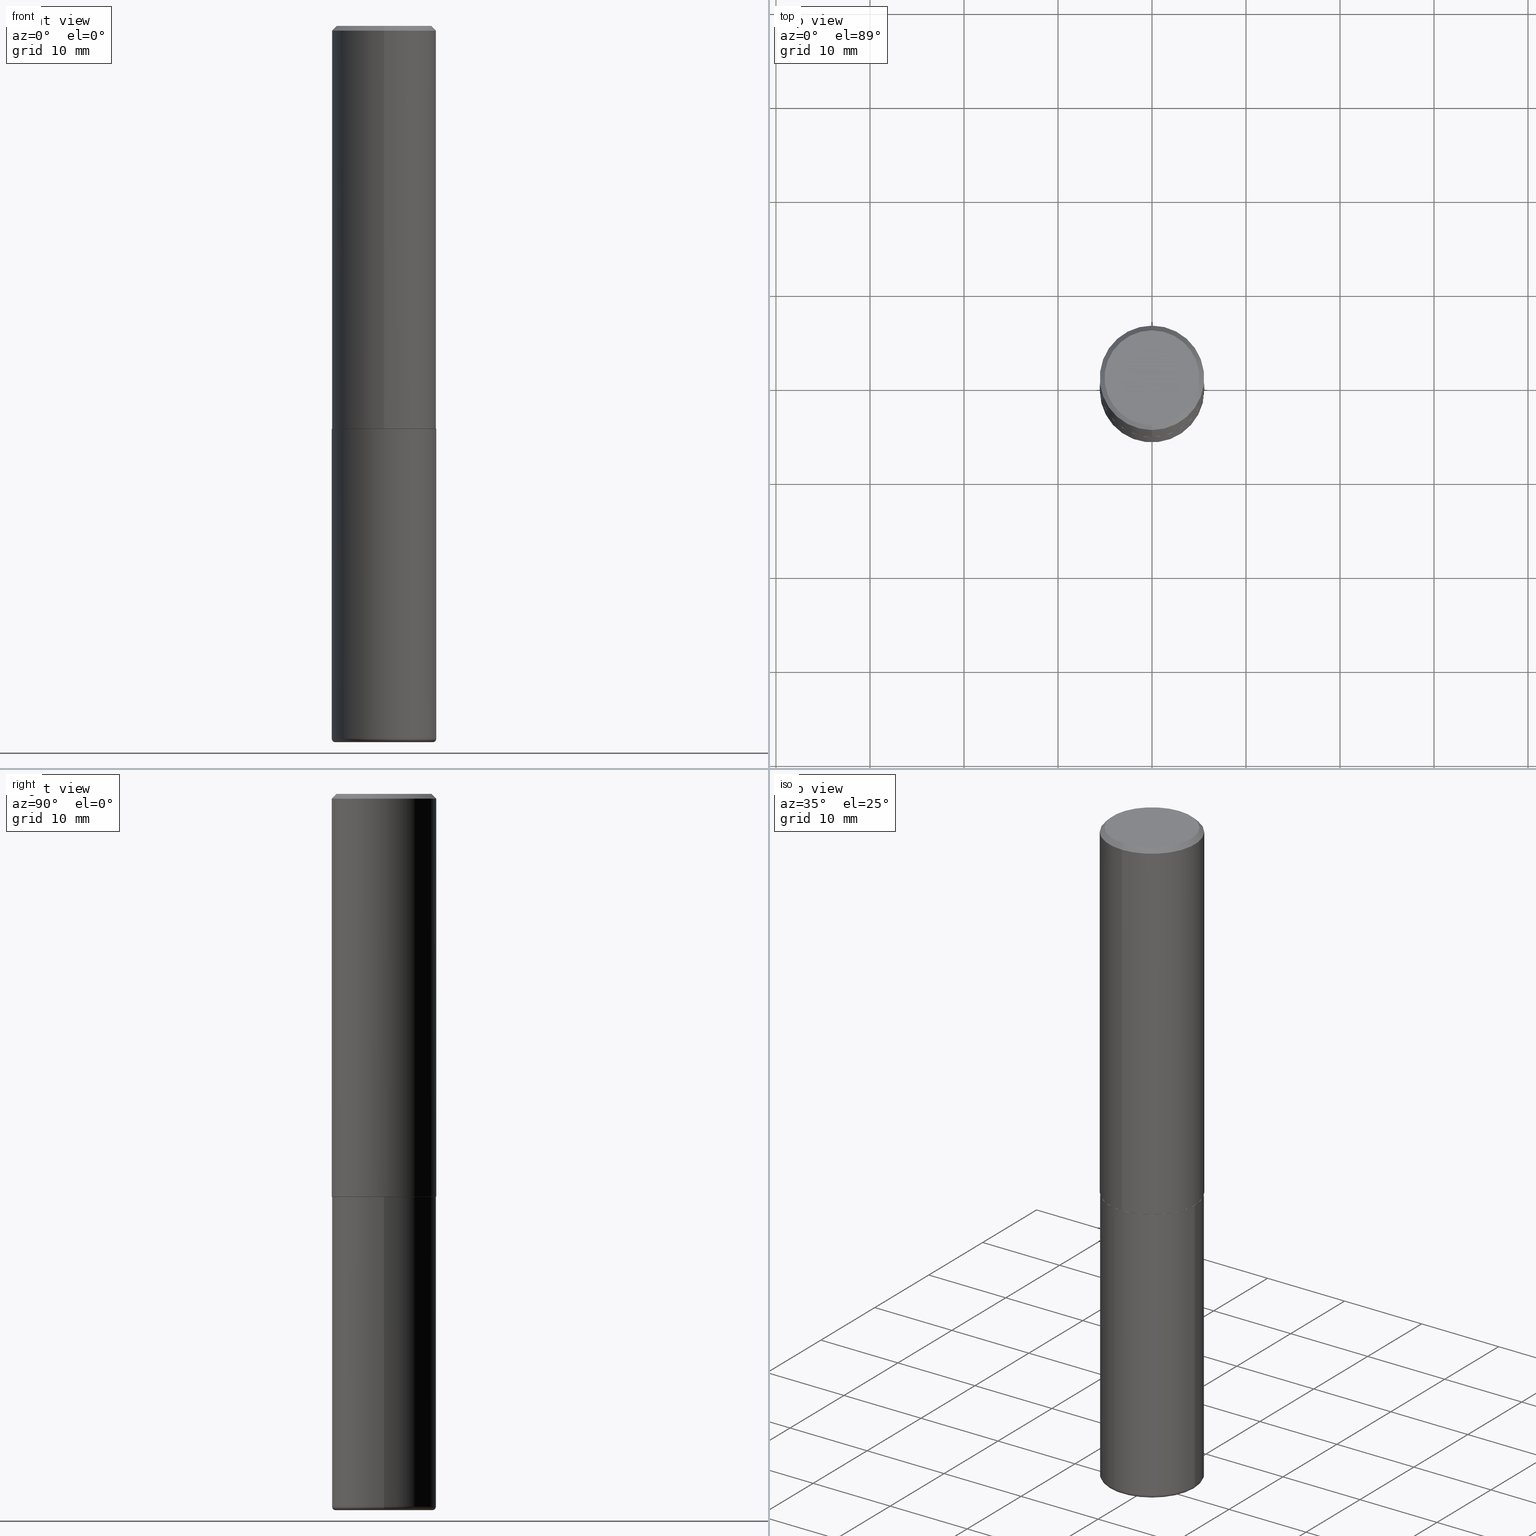
[diagram: canonical four-view strip — front | top / right | iso, engineering-drawing reading convention]
A machine part, canonical four-view strip (front | top / right | iso — engineering-drawing reading convention). The complete STEP part file that produces these views, byte-faithful:
ISO-10303-21;
HEADER;
FILE_DESCRIPTION (( 'STEP AP203' ),
    '1' );
FILE_NAME ('37498.STEP',
    '2024-03-02T02:43:51',
    ( '' ),
    ( '' ),
    'SwSTEP 2.0',
    'SolidWorks 2023',
    '' );
FILE_SCHEMA (( 'CONFIG_CONTROL_DESIGN' ));
ENDSEC;

DATA;
#1 = EDGE_CURVE ( 'NONE', #226, #334, #230, .T. ) ;
#2 = CALENDAR_DATE ( 2024, 1, 3 ) ;
#3 = APPROVAL_PERSON_ORGANIZATION ( #5, #232, #388 ) ;
#4 = SHAPE_DEFINITION_REPRESENTATION ( #55, #310 ) ;
#5 = PERSON_AND_ORGANIZATION ( #116, #291 ) ;
#6 = CC_DESIGN_DATE_AND_TIME_ASSIGNMENT ( #286, #224, ( #11 ) ) ;
#7 = EDGE_LOOP ( 'NONE', ( #299, #97, #415, #391 ) ) ;
#8 = TOROIDAL_SURFACE ( 'NONE', #198, 0.2037499999999999867, 0.01499999999999987454 ) ;
#9 = CIRCLE ( 'NONE', #235, 0.2187499999999999445 ) ;
#10 = VERTEX_POINT ( 'NONE', #69 ) ;
#11 = SECURITY_CLASSIFICATION ( '', '', #321 ) ;
#12 = ORIENTED_EDGE ( 'NONE', *, *, #1, .T. ) ;
#13 = CYLINDRICAL_SURFACE ( 'NONE', #88, 0.2187500000000000833 ) ;
#14 = EDGE_LOOP ( 'NONE', ( #131, #320, #165, #110 ) ) ;
#15 = LINE ( 'NONE', #138, #65 ) ;
#16 = CYLINDRICAL_SURFACE ( 'NONE', #187, 0.2187500000000000278 ) ;
#17 = AXIS2_PLACEMENT_3D ( 'NONE', #180, #211, #57 ) ;
#18 = PERSON_AND_ORGANIZATION_ROLE ( 'creator' ) ;
#19 = AXIS2_PLACEMENT_3D ( 'NONE', #76, #201, #275 ) ;
#20 = DIRECTION ( 'NONE',  ( -2.445468806185136597E-29, 3.491481338843145583E-15, 1.000000000000000000 ) ) ;
#21 = DIRECTION ( 'NONE',  ( 5.024295867788490741E-15, 0.7071067811866103003, 0.7071067811864847341 ) ) ;
#22 = ADVANCED_FACE ( 'NONE', ( #265 ), #8, .T. ) ;
#23 = DIRECTION ( 'NONE',  ( -2.445054220858351343E-29, 3.492075048627833097E-15, 1.000000000000000000 ) ) ;
#24 = EDGE_LOOP ( 'NONE', ( #125, #384, #153, #231 ) ) ;
#25 = DIRECTION ( 'NONE',  ( -6.982962677686265922E-15, -1.000000000000000000, 3.492075048627833097E-15 ) ) ;
#26 = ORIENTED_EDGE ( 'NONE', *, *, #352, .T. ) ;
#27 = AXIS2_PLACEMENT_3D ( 'NONE', #353, #241, #278 ) ;
#28 = CC_DESIGN_SECURITY_CLASSIFICATION ( #11, ( #402 ) ) ;
#29 = PRODUCT_DEFINITION ( 'UNKNOWN', '', #402, #307 ) ;
#30 = FACE_OUTER_BOUND ( 'NONE', #63, .T. ) ;
#31 = ORIENTED_EDGE ( 'NONE', *, *, #375, .F. ) ;
#32 = LINE ( 'NONE', #182, #244 ) ;
#33 = CALENDAR_DATE ( 2024, 1, 3 ) ;
#34 = ORIENTED_EDGE ( 'NONE', *, *, #319, .F. ) ;
#35 = ADVANCED_FACE ( 'NONE', ( #135 ), #311, .T. ) ;
#36 = CARTESIAN_POINT ( 'NONE',  ( 0.2187499999999999445, -1.194959488219066130E-14, -2.984999999999999876 ) ) ;
#37 = DIRECTION ( 'NONE',  ( 0.000000000000000000, 0.000000000000000000, 1.000000000000000000 ) ) ;
#38 = APPROVAL_ROLE ( '' ) ;
#39 = DIRECTION ( 'NONE',  ( -2.445468806185136597E-29, 3.491481338843145583E-15, 1.000000000000000000 ) ) ;
#40 = CONICAL_SURFACE ( 'NONE', #214, 0.2177499999999999991, 0.7853981633975336552 ) ;
#41 = ADVANCED_FACE ( 'NONE', ( #71 ), #394, .T. ) ;
#42 = CC_DESIGN_APPROVAL ( #280, ( #402 ) ) ;
#43 = ORIENTED_EDGE ( 'NONE', *, *, #1, .F. ) ;
#44 = ORIENTED_EDGE ( 'NONE', *, *, #297, .F. ) ;
#45 = DIRECTION ( 'NONE',  ( -6.982962677686266711E-15, -1.000000000000000000, 3.491481338843145583E-15 ) ) ;
#46 = AXIS2_PLACEMENT_3D ( 'NONE', #82, #20, #143 ) ;
#47 = EDGE_LOOP ( 'NONE', ( #355, #151 ) ) ;
#48 = APPROVAL_PERSON_ORGANIZATION ( #253, #274, #38 ) ;
#49 = DIRECTION ( 'NONE',  ( -6.982962677686265922E-15, -1.000000000000000000, 3.492075048627833097E-15 ) ) ;
#50 = DIRECTION ( 'NONE',  ( -2.445468806185136597E-29, 3.491481338843145583E-15, 1.000000000000000000 ) ) ;
#51 = FACE_OUTER_BOUND ( 'NONE', #340, .T. ) ;
#52 = FACE_OUTER_BOUND ( 'NONE', #292, .T. ) ;
#53 = CONICAL_SURFACE ( 'NONE', #266, 0.2177499999999999991, 0.7853981633975336552 ) ;
#54 = CARTESIAN_POINT ( 'NONE',  ( 4.890108441716715262E-31, -6.984150097255683598E-17, -0.02000000000000005246 ) ) ;
#55 = PRODUCT_DEFINITION_SHAPE ( 'NONE', 'NONE',  #29 ) ;
#56 = CARTESIAN_POINT ( 'NONE',  ( 1.527523085743870843E-15, 0.2187499999999998890, -0.02000000000000081574 ) ) ;
#57 = DIRECTION ( 'NONE',  ( 1.000000000000000000, -6.982962677686263555E-15, 0.000000000000000000 ) ) ;
#58 = DIRECTION ( 'NONE',  ( -2.445054220858351343E-29, 3.492075048627833097E-15, 1.000000000000000000 ) ) ;
#59 = CIRCLE ( 'NONE', #347, 0.01499999999999987454 ) ;
#60 = DIRECTION ( 'NONE',  ( 1.000000000000000000, 0.000000000000000000, 0.000000000000000000 ) ) ;
#61 = DIRECTION ( 'NONE',  ( -4.937700262164969294E-15, -0.7071067811866054154, 0.7071067811864896191 ) ) ;
#62 = CALENDAR_DATE ( 2024, 1, 3 ) ;
#63 = EDGE_LOOP ( 'NONE', ( #327, #31, #99, #387 ) ) ;
#64 = ADVANCED_FACE ( 'NONE', ( #168 ), #136, .T. ) ;
#65 = VECTOR ( 'NONE', #172, 39.37007874015748143 ) ;
#66 = PRODUCT ( '37498', '37498', '', ( #414 ) ) ;
#67 = EDGE_LOOP ( 'NONE', ( #195, #317, #26, #354 ) ) ;
#68 = CC_DESIGN_DATE_AND_TIME_ASSIGNMENT ( #127, #259, ( #29 ) ) ;
#69 = CARTESIAN_POINT ( 'NONE',  ( -1.432128957034806803E-15, -0.1987500000000000100, 6.429457658532835252E-16 ) ) ;
#70 = CIRCLE ( 'NONE', #206, 0.2187500000000000000 ) ;
#71 = FACE_OUTER_BOUND ( 'NONE', #103, .T. ) ;
#72 = DIRECTION ( 'NONE',  ( 2.445054220858351343E-29, -3.492075048627833097E-15, -1.000000000000000000 ) ) ;
#73 = DIRECTION ( 'NONE',  ( -2.445054220858351343E-29, 3.492075048627833097E-15, 1.000000000000000000 ) ) ;
#74 = CC_DESIGN_PERSON_AND_ORGANIZATION_ASSIGNMENT ( #184, #155, ( #29 ) ) ;
#75 = CARTESIAN_POINT ( 'NONE',  ( 0.000000000000000000, 0.000000000000000000, 0.000000000000000000 ) ) ;
#76 = CARTESIAN_POINT ( 'NONE',  ( 4.126728610437418568E-29, -5.891874759297808836E-15, -1.687500000000000222 ) ) ;
#77 = DIRECTION ( 'NONE',  ( 1.000000000000000000, -6.982962677686266711E-15, 4.876176775795935232E-29 ) ) ;
#78 = CC_DESIGN_PERSON_AND_ORGANIZATION_ASSIGNMENT ( #189, #94, ( #11 ) ) ;
#79 = DIRECTION ( 'NONE',  ( -2.445468806185136597E-29, 3.491481338843145583E-15, 1.000000000000000000 ) ) ;
#80 = CARTESIAN_POINT ( 'NONE',  ( -1.520540123066143216E-15, -0.2177500000000058833, -1.687499999999999334 ) ) ;
#81 = CIRCLE ( 'NONE', #152, 0.1987500000000000100 ) ;
#82 = CARTESIAN_POINT ( 'NONE',  ( 7.299724386462632472E-29, -1.042207179644678967E-14, -2.984999999999999876 ) ) ;
#83 = FACE_OUTER_BOUND ( 'NONE', #282, .T. ) ;
#84 = ADVANCED_FACE ( 'NONE', ( #101 ), #289, .T. ) ;
#85 = DIRECTION ( 'NONE',  ( 2.438088387897960049E-29, -3.491481338843145188E-15, -1.000000000000000000 ) ) ;
#86 = CARTESIAN_POINT ( 'NONE',  ( 0.2037499999999999867, -1.189722266210801146E-14, -2.999999999999999556 ) ) ;
#87 =( NAMED_UNIT ( * ) SI_UNIT ( $, .STERADIAN. ) SOLID_ANGLE_UNIT ( ) );
#88 = AXIS2_PLACEMENT_3D ( 'NONE', #239, #141, #246 ) ;
#89 = APPLICATION_PROTOCOL_DEFINITION ( 'international standard', 'config_control_design', 1994, #220 ) ;
#90 = ORIENTED_EDGE ( 'NONE', *, *, #297, .T. ) ;
#91 = EDGE_CURVE ( 'NONE', #233, #324, #59, .T. ) ;
#92 = APPROVAL_DATE_TIME ( #323, #274 ) ;
#93 = AXIS2_PLACEMENT_3D ( 'NONE', #249, #39, #225 ) ;
#94 = PERSON_AND_ORGANIZATION_ROLE ( 'classification_officer' ) ;
#95 = EDGE_CURVE ( 'NONE', #334, #150, #229, .T. ) ;
#96 = PERSON_AND_ORGANIZATION ( #116, #291 ) ;
#97 = ORIENTED_EDGE ( 'NONE', *, *, #331, .T. ) ;
#98 = DATE_AND_TIME ( #62, #173 ) ;
#99 = ORIENTED_EDGE ( 'NONE', *, *, #408, .T. ) ;
#100 = PERSON_AND_ORGANIZATION_ROLE ( 'design_owner' ) ;
#101 = FACE_OUTER_BOUND ( 'NONE', #290, .T. ) ;
#102 = ORIENTED_EDGE ( 'NONE', *, *, #356, .T. ) ;
#103 = EDGE_LOOP ( 'NONE', ( #102, #12, #205, #350 ) ) ;
#104 = DIRECTION ( 'NONE',  ( 7.105427357601001859E-15, 1.000000000000000000, -3.491481338843145583E-15 ) ) ;
#105 = AXIS2_PLACEMENT_3D ( 'NONE', #362, #72, #194 ) ;
#106 = VECTOR ( 'NONE', #61, 39.37007874015748143 ) ;
#107 = DIRECTION ( 'NONE',  ( -2.445054220858351343E-29, 3.492075048627833097E-15, 1.000000000000000000 ) ) ;
#108 = CARTESIAN_POINT ( 'NONE',  ( 1.249524178112448832E-45, -1.784595273110905928E-31, -5.110415006149825816E-17 ) ) ;
#109 = DIRECTION ( 'NONE',  ( -2.445468806185136597E-29, 3.491481338843145583E-15, 1.000000000000000000 ) ) ;
#110 = ORIENTED_EDGE ( 'NONE', *, *, #336, .F. ) ;
#111 = FACE_OUTER_BOUND ( 'NONE', #47, .T. ) ;
#112 = DIRECTION ( 'NONE',  ( -2.445054220858351343E-29, 3.492075048627833097E-15, 1.000000000000000000 ) ) ;
#113 = CARTESIAN_POINT ( 'NONE',  ( 0.2187500000000000000, -7.419397845041678890E-15, -1.687500000000000222 ) ) ;
#114 = CARTESIAN_POINT ( 'NONE',  ( 1.547206807117658972E-15, 0.2177499999999940872, -1.687500000000001110 ) ) ;
#115 = AXIS2_PLACEMENT_3D ( 'NONE', #407, #374, #25 ) ;
#116 = PERSON ( 'UNSPECIFIED', 'UNSPECIFIED', 'UNSPECIFIED', ('UNSPECIFIED'), ('UNSPECIFIED'), ('UNSPECIFIED') ) ;
#117 = LOCAL_TIME ( 21, 43, 51.00000000000000000, #196 ) ;
#118 = CARTESIAN_POINT ( 'NONE',  ( -0.2037499999999999867, -8.974340972335584846E-15, -2.984999999999999876 ) ) ;
#119 = PLANE ( 'NONE',  #115 ) ;
#120 = EDGE_CURVE ( 'NONE', #10, #193, #81, .T. ) ;
#121 = AXIS2_PLACEMENT_3D ( 'NONE', #242, #273, #345 ) ;
#122 = MANIFOLD_SOLID_BREP ( 'Body-Move/Copy2[1]', #372 ) ;
#123 = LOCAL_TIME ( 21, 43, 51.00000000000000000, #418 ) ;
#124 = EDGE_CURVE ( 'NONE', #395, #396, #70, .T. ) ;
#125 = ORIENTED_EDGE ( 'NONE', *, *, #413, .T. ) ;
#126 = DIRECTION ( 'NONE',  ( -4.851104656540958753E-15, -0.7071067811865492381, -0.7071067811865457964 ) ) ;
#127 = DATE_AND_TIME ( #2, #174 ) ;
#128 = APPLICATION_CONTEXT ( 'configuration controlled 3d designs of mechanical parts and assemblies' ) ;
#129 = AXIS2_PLACEMENT_3D ( 'NONE', #348, #37, #60 ) ;
#130 = APPROVAL_DATE_TIME ( #98, #232 ) ;
#131 = ORIENTED_EDGE ( 'NONE', *, *, #331, .F. ) ;
#132 = ADVANCED_FACE ( 'NONE', ( #30 ), #381, .T. ) ;
#133 = CIRCLE ( 'NONE', #328, 0.2187500000000000000 ) ;
#134 = CARTESIAN_POINT ( 'NONE',  ( 4.890108441716715262E-31, -6.984150097255683598E-17, -0.02000000000000005246 ) ) ;
#135 = FACE_OUTER_BOUND ( 'NONE', #7, .T. ) ;
#136 = CYLINDRICAL_SURFACE ( 'NONE', #234, 0.2187500000000000278 ) ;
#137 = CC_DESIGN_PERSON_AND_ORGANIZATION_ASSIGNMENT ( #380, #100, ( #66 ) ) ;
#138 = CARTESIAN_POINT ( 'NONE',  ( 0.2187500000000000278, -1.527523085743871040E-15, 1.066663669705361025E-29 ) ) ;
#139 = AXIS2_PLACEMENT_3D ( 'NONE', #134, #277, #410 ) ;
#140 = DIRECTION ( 'NONE',  ( -6.982962677686265922E-15, -1.000000000000000000, 3.763740060157423393E-15 ) ) ;
#141 = DIRECTION ( 'NONE',  ( -2.445054220858351343E-29, 3.492075048627833097E-15, 1.000000000000000000 ) ) ;
#142 = CARTESIAN_POINT ( 'NONE',  ( -0.2037499999999999867, -8.947236377194901810E-15, -2.999999999999999556 ) ) ;
#143 = DIRECTION ( 'NONE',  ( 1.000000000000000000, -6.982962677686271444E-15, 0.000000000000000000 ) ) ;
#144 = LINE ( 'NONE', #250, #106 ) ;
#145 = EDGE_CURVE ( 'NONE', #358, #226, #369, .T. ) ;
#146 = CARTESIAN_POINT ( 'NONE',  ( 4.126728610437418568E-29, -5.891874759297808836E-15, -1.687500000000000222 ) ) ;
#147 = EDGE_LOOP ( 'NONE', ( #154, #364, #90, #183 ) ) ;
#148 = CARTESIAN_POINT ( 'NONE',  ( 7.336406418555408669E-29, -1.047444401652943478E-14, -2.999999999999999556 ) ) ;
#149 = CC_DESIGN_PERSON_AND_ORGANIZATION_ASSIGNMENT ( #171, #18, ( #402 ) ) ;
#150 = VERTEX_POINT ( 'NONE', #175 ) ;
#151 = ORIENTED_EDGE ( 'NONE', *, *, #248, .F. ) ;
#152 = AXIS2_PLACEMENT_3D ( 'NONE', #306, #204, #281 ) ;
#153 = ORIENTED_EDGE ( 'NONE', *, *, #261, .F. ) ;
#154 = ORIENTED_EDGE ( 'NONE', *, *, #145, .F. ) ;
#155 = PERSON_AND_ORGANIZATION_ROLE ( 'creator' ) ;
#156 = AXIS2_PLACEMENT_3D ( 'NONE', #382, #218, #255 ) ;
#157 = DIRECTION ( 'NONE',  ( 1.000000000000000000, -6.982962677686267499E-15, 4.883557194083114022E-29 ) ) ;
#158 = APPROVAL_STATUS ( 'not_yet_approved' ) ;
#159 = CARTESIAN_POINT ( 'NONE',  ( 7.299724386462632472E-29, -1.042207179644678967E-14, -2.984999999999999876 ) ) ;
#160 = ADVANCED_FACE ( 'NONE', ( #52 ), #40, .T. ) ;
#161 = DIMENSIONAL_EXPONENTS ( 1.000000000000000000, 0.000000000000000000, 0.000000000000000000, 0.000000000000000000, 0.000000000000000000, 0.000000000000000000, 0.000000000000000000 ) ;
#162 = DIRECTION ( 'NONE',  ( 1.000000000000000000, -6.982962677686326664E-15, 0.000000000000000000 ) ) ;
#163 = AXIS2_PLACEMENT_3D ( 'NONE', #75, #200, #49 ) ;
#164 = CIRCLE ( 'NONE', #156, 0.2177499999999999991 ) ;
#165 = ORIENTED_EDGE ( 'NONE', *, *, #91, .T. ) ;
#166 = EDGE_CURVE ( 'NONE', #233, #185, #416, .T. ) ;
#167 = CARTESIAN_POINT ( 'NONE',  ( -0.2187499999999999445, -8.867759561971568934E-15, -2.984999999999999876 ) ) ;
#168 = FACE_OUTER_BOUND ( 'NONE', #24, .T. ) ;
#169 = CARTESIAN_POINT ( 'NONE',  ( 1.527523085743870843E-15, 0.2187499999999998890, -0.02000000000000081574 ) ) ;
#170 = CARTESIAN_POINT ( 'NONE',  ( 4.126028997698468907E-29, -5.892876644559468745E-15, -1.687500000000000222 ) ) ;
#171 = PERSON_AND_ORGANIZATION ( #116, #291 ) ;
#172 = DIRECTION ( 'NONE',  ( -2.445468806185136877E-29, 3.491481338843145188E-15, 1.000000000000000000 ) ) ;
#173 = LOCAL_TIME ( 21, 43, 51.00000000000000000, #351 ) ;
#174 = LOCAL_TIME ( 21, 43, 51.00000000000000000, #318 ) ;
#175 = CARTESIAN_POINT ( 'NONE',  ( -1.500733937012521346E-15, -0.2187500000000000278, -0.01999999999999928571 ) ) ;
#176 = CARTESIAN_POINT ( 'NONE',  ( 4.126028997698468907E-29, -5.892876644559468745E-15, -1.687500000000000222 ) ) ;
#177 = ADVANCED_FACE ( 'NONE', ( #412 ), #53, .T. ) ;
#178 = DIRECTION ( 'NONE',  ( 4.937700262164542520E-15, 0.7071067811865443531, -0.7071067811865506814 ) ) ;
#179 = DIRECTION ( 'NONE',  ( 6.982962677686265922E-15, 1.000000000000000000, -3.492862791899308860E-15 ) ) ;
#180 = CARTESIAN_POINT ( 'NONE',  ( 7.336406418555408669E-29, -1.047444401652943478E-14, -2.999999999999999556 ) ) ;
#181 = CC_DESIGN_APPROVAL ( #274, ( #11 ) ) ;
#182 = CARTESIAN_POINT ( 'NONE',  ( -1.500733937012521346E-15, -0.2187500000000000278, -0.01999999999999928571 ) ) ;
#183 = ORIENTED_EDGE ( 'NONE', *, *, #325, .F. ) ;
#184 = PERSON_AND_ORGANIZATION ( #116, #291 ) ;
#185 = VERTEX_POINT ( 'NONE', #142 ) ;
#186 = CLOSED_SHELL ( 'NONE', ( #160, #41, #84, #132, #379, #177, #208, #227 ) ) ;
#187 = AXIS2_PLACEMENT_3D ( 'NONE', #283, #79, #77 ) ;
#188 = ORIENTED_EDGE ( 'NONE', *, *, #319, .T. ) ;
#189 = PERSON_AND_ORGANIZATION ( #116, #291 ) ;
#190 = DIRECTION ( 'NONE',  ( -2.445468806185136597E-29, 3.491481338843145583E-15, 1.000000000000000000 ) ) ;
#191 = VECTOR ( 'NONE', #305, 39.37007874015748143 ) ;
#192 = PRODUCT_RELATED_PRODUCT_CATEGORY ( 'detail', '', ( #66 ) ) ;
#193 = VERTEX_POINT ( 'NONE', #276 ) ;
#194 = DIRECTION ( 'NONE',  ( 6.982962677686265922E-15, 1.000000000000000000, -3.492862791899308860E-15 ) ) ;
#195 = ORIENTED_EDGE ( 'NONE', *, *, #361, .F. ) ;
#196 = COORDINATED_UNIVERSAL_TIME_OFFSET ( 5, 0, .BEHIND. ) ;
#197 = CC_DESIGN_PERSON_AND_ORGANIZATION_ASSIGNMENT ( #405, #219, ( #402 ) ) ;
#198 = AXIS2_PLACEMENT_3D ( 'NONE', #159, #269, #157 ) ;
#199 =( GEOMETRIC_REPRESENTATION_CONTEXT ( 3 ) GLOBAL_UNCERTAINTY_ASSIGNED_CONTEXT ( ( #298 ) ) GLOBAL_UNIT_ASSIGNED_CONTEXT ( ( #262, #390, #87 ) ) REPRESENTATION_CONTEXT ( 'NONE', 'WORKASPACE' ) );
#200 = DIRECTION ( 'NONE',  ( -2.445054220858351343E-29, 3.492075048627833097E-15, 1.000000000000000000 ) ) ;
#201 = DIRECTION ( 'NONE',  ( 2.438088387897960049E-29, -3.491481338843145188E-15, -1.000000000000000000 ) ) ;
#202 = FACE_OUTER_BOUND ( 'NONE', #363, .T. ) ;
#203 = DIRECTION ( 'NONE',  ( -1.000000000000000000, 7.105427357601050768E-15, 0.000000000000000000 ) ) ;
#204 = DIRECTION ( 'NONE',  ( -2.445054220858351343E-29, 3.492075048627833097E-15, 1.000000000000000000 ) ) ;
#205 = ORIENTED_EDGE ( 'NONE', *, *, #288, .F. ) ;
#206 = AXIS2_PLACEMENT_3D ( 'NONE', #339, #210, #302 ) ;
#207 = DIRECTION ( 'NONE',  ( -2.445054220858351343E-29, 3.492075048627833097E-15, 1.000000000000000000 ) ) ;
#208 = ADVANCED_FACE ( 'NONE', ( #83 ), #119, .F. ) ;
#209 = CARTESIAN_POINT ( 'NONE',  ( 4.123583943477609610E-29, -5.889384569510841777E-15, -1.686500000000000110 ) ) ;
#210 = DIRECTION ( 'NONE',  ( -2.445468806185136597E-29, 3.491481338843145583E-15, 1.000000000000000000 ) ) ;
#211 = DIRECTION ( 'NONE',  ( -2.445468806185136597E-29, 3.491481338843145583E-15, 1.000000000000000000 ) ) ;
#212 = ADVANCED_FACE ( 'NONE', ( #367 ), #16, .T. ) ;
#213 = LENGTH_MEASURE_WITH_UNIT ( LENGTH_MEASURE( 0.02539999999999999897 ), #312 );
#214 = AXIS2_PLACEMENT_3D ( 'NONE', #170, #107, #377 ) ;
#215 = CC_DESIGN_APPROVAL ( #232, ( #29 ) ) ;
#216 = ORIENTED_EDGE ( 'NONE', *, *, #268, .T. ) ;
#217 = APPROVAL_STATUS ( 'not_yet_approved' ) ;
#218 = DIRECTION ( 'NONE',  ( -2.445054220858351343E-29, 3.492075048627833097E-15, 1.000000000000000000 ) ) ;
#219 = PERSON_AND_ORGANIZATION_ROLE ( 'design_supplier' ) ;
#220 = APPLICATION_CONTEXT ( 'configuration controlled 3d designs of mechanical parts and assemblies' ) ;
#221 = ORIENTED_EDGE ( 'NONE', *, *, #303, .T. ) ;
#222 = AXIS2_PLACEMENT_3D ( 'NONE', #209, #409, #376 ) ;
#223 = ORIENTED_EDGE ( 'NONE', *, *, #356, .F. ) ;
#224 = DATE_TIME_ROLE ( 'classification_date' ) ;
#225 = DIRECTION ( 'NONE',  ( 1.000000000000000000, -6.982962677686271444E-15, 0.000000000000000000 ) ) ;
#226 = VERTEX_POINT ( 'NONE', #247 ) ;
#227 = ADVANCED_FACE ( 'NONE', ( #202 ), #337, .F. ) ;
#228 = ORIENTED_EDGE ( 'NONE', *, *, #325, .T. ) ;
#229 = CIRCLE ( 'NONE', #139, 0.2187499999999999445 ) ;
#230 = LINE ( 'NONE', #329, #333 ) ;
#231 = ORIENTED_EDGE ( 'NONE', *, *, #352, .F. ) ;
#232 = APPROVAL ( #217, 'UNSPECIFIED' ) ;
#233 = VERTEX_POINT ( 'NONE', #86 ) ;
#234 = AXIS2_PLACEMENT_3D ( 'NONE', #271, #190, #263 ) ;
#235 = AXIS2_PLACEMENT_3D ( 'NONE', #308, #207, #343 ) ;
#236 = LINE ( 'NONE', #406, #191 ) ;
#237 = DIRECTION ( 'NONE',  ( 1.000000000000000000, -6.982962677686263555E-15, 0.000000000000000000 ) ) ;
#238 = APPROVAL_DATE_TIME ( #335, #280 ) ;
#239 = CARTESIAN_POINT ( 'NONE',  ( 0.000000000000000000, 0.000000000000000000, 0.000000000000000000 ) ) ;
#240 = DIRECTION ( 'NONE',  ( 2.445054220858351343E-29, -3.492075048627833097E-15, -1.000000000000000000 ) ) ;
#241 = DIRECTION ( 'NONE',  ( -2.445054220858351343E-29, 3.492075048627833097E-15, 1.000000000000000000 ) ) ;
#242 = CARTESIAN_POINT ( 'NONE',  ( 1.387863832190145233E-15, 0.1987500000000000100, -7.196019909455309833E-16 ) ) ;
#243 = AXIS2_PLACEMENT_3D ( 'NONE', #294, #360, #301 ) ;
#244 = VECTOR ( 'NONE', #126, 39.37007874015748143 ) ;
#245 = CARTESIAN_POINT ( 'NONE',  ( 4.126028997698468907E-29, -5.892876644559468745E-15, -1.687500000000000222 ) ) ;
#246 = DIRECTION ( 'NONE',  ( -6.982962677686265922E-15, -1.000000000000000000, 3.492075048627833097E-15 ) ) ;
#247 = CARTESIAN_POINT ( 'NONE',  ( 1.554312234475240653E-15, 0.2187499999999943101, -1.686500000000000998 ) ) ;
#248 = EDGE_CURVE ( 'NONE', #185, #233, #393, .T. ) ;
#249 = CARTESIAN_POINT ( 'NONE',  ( 7.299724386462632472E-29, -1.042207179644678967E-14, -2.984999999999999876 ) ) ;
#250 = CARTESIAN_POINT ( 'NONE',  ( -1.520540123066143216E-15, -0.2177500000000058833, -1.687499999999999334 ) ) ;
#251 = CIRCLE ( 'NONE', #341, 0.01499999999999987454 ) ;
#252 = CIRCLE ( 'NONE', #93, 0.2187500000000000278 ) ;
#253 = PERSON_AND_ORGANIZATION ( #116, #291 ) ;
#254 = EDGE_CURVE ( 'NONE', #358, #287, #313, .T. ) ;
#255 = DIRECTION ( 'NONE',  ( -6.982962677686265922E-15, -1.000000000000000000, 3.763740060157423393E-15 ) ) ;
#256 = ORIENTED_EDGE ( 'NONE', *, *, #261, .T. ) ;
#257 = ORIENTED_EDGE ( 'NONE', *, *, #95, .F. ) ;
#258 = CIRCLE ( 'NONE', #272, 0.1987500000000000100 ) ;
#259 = DATE_TIME_ROLE ( 'creation_date' ) ;
#260 = VERTEX_POINT ( 'NONE', #346 ) ;
#261 = EDGE_CURVE ( 'NONE', #396, #395, #133, .T. ) ;
#262 =( CONVERSION_BASED_UNIT ( 'INCH', #213 ) LENGTH_UNIT ( ) NAMED_UNIT ( #161 ) );
#263 = DIRECTION ( 'NONE',  ( 1.000000000000000000, -6.982962677686266711E-15, 4.876176775795935232E-29 ) ) ;
#264 = MANIFOLD_SOLID_BREP ( 'Body-Move/Copy2[2]', #186 ) ;
#265 = FACE_OUTER_BOUND ( 'NONE', #14, .T. ) ;
#266 = AXIS2_PLACEMENT_3D ( 'NONE', #245, #112, #140 ) ;
#267 = ORIENTED_EDGE ( 'NONE', *, *, #145, .T. ) ;
#268 = EDGE_CURVE ( 'NONE', #260, #150, #314, .T. ) ;
#269 = DIRECTION ( 'NONE',  ( -2.445468806185136597E-29, 3.491481338843145583E-15, 1.000000000000000000 ) ) ;
#270 = PLANE ( 'NONE',  #19 ) ;
#271 = CARTESIAN_POINT ( 'NONE',  ( 0.000000000000000000, 0.000000000000000000, 0.000000000000000000 ) ) ;
#272 = AXIS2_PLACEMENT_3D ( 'NONE', #108, #368, #338 ) ;
#273 = DIRECTION ( 'NONE',  ( 2.445054220858351343E-29, -3.492075048627833097E-15, -1.000000000000000000 ) ) ;
#274 = APPROVAL ( #326, 'UNSPECIFIED' ) ;
#275 = DIRECTION ( 'NONE',  ( -1.000000000000000000, 6.982962677686265922E-15, -4.876176775795935793E-29 ) ) ;
#276 = CARTESIAN_POINT ( 'NONE',  ( 1.457693458967008136E-15, 0.1987500000000000100, -7.451540659762801031E-16 ) ) ;
#277 = DIRECTION ( 'NONE',  ( -2.445054220858351343E-29, 3.492075048627833097E-15, 1.000000000000000000 ) ) ;
#278 = DIRECTION ( 'NONE',  ( -6.982962677686265922E-15, -1.000000000000000000, 3.746534391310985612E-15 ) ) ;
#279 = AXIS2_PLACEMENT_3D ( 'NONE', #342, #85, #300 ) ;
#280 = APPROVAL ( #158, 'UNSPECIFIED' ) ;
#281 = DIRECTION ( 'NONE',  ( -6.982962677686265133E-15, -1.000000000000000000, 3.492075048627833097E-15 ) ) ;
#282 = EDGE_LOOP ( 'NONE', ( #34, #316 ) ) ;
#283 = CARTESIAN_POINT ( 'NONE',  ( 0.000000000000000000, 0.000000000000000000, 0.000000000000000000 ) ) ;
#284 = APPLICATION_PROTOCOL_DEFINITION ( 'international standard', 'config_control_design', 1994, #128 ) ;
#285 = CIRCLE ( 'NONE', #46, 0.2187500000000000278 ) ;
#286 = DATE_AND_TIME ( #33, #349 ) ;
#287 = VERTEX_POINT ( 'NONE', #80 ) ;
#288 = EDGE_CURVE ( 'NONE', #150, #334, #9, .T. ) ;
#289 = CONICAL_SURFACE ( 'NONE', #105, 0.2187499999999999445, 0.7853981633974472798 ) ;
#290 = EDGE_LOOP ( 'NONE', ( #295, #221, #315, #389 ) ) ;
#291 = ORGANIZATION ( 'UNSPECIFIED', 'UNSPECIFIED', '' ) ;
#292 = EDGE_LOOP ( 'NONE', ( #188, #267, #223, #44 ) ) ;
#293 = APPROVAL_ROLE ( '' ) ;
#294 = CARTESIAN_POINT ( 'NONE',  ( 7.299724386462632472E-29, -1.042207179644678967E-14, -2.984999999999999876 ) ) ;
#295 = ORIENTED_EDGE ( 'NONE', *, *, #120, .F. ) ;
#296 = VECTOR ( 'NONE', #21, 39.37007874015748143 ) ;
#297 = EDGE_CURVE ( 'NONE', #287, #260, #144, .T. ) ;
#298 = UNCERTAINTY_MEASURE_WITH_UNIT (LENGTH_MEASURE( 1.000000000000000082E-05 ), #262, 'distance_accuracy_value', 'NONE');
#299 = ORIENTED_EDGE ( 'NONE', *, *, #166, .T. ) ;
#300 = DIRECTION ( 'NONE',  ( -1.000000000000000000, 6.982962677686265922E-15, -4.876176775795935793E-29 ) ) ;
#301 = DIRECTION ( 'NONE',  ( 1.000000000000000000, -6.982962677686267499E-15, 4.883557194083114022E-29 ) ) ;
#302 = DIRECTION ( 'NONE',  ( 1.000000000000000000, -6.982962677686267499E-15, 0.000000000000000000 ) ) ;
#303 = EDGE_CURVE ( 'NONE', #10, #150, #32, .T. ) ;
#304 = AXIS2_PLACEMENT_3D ( 'NONE', #54, #240, #179 ) ;
#305 = DIRECTION ( 'NONE',  ( -2.445468806185136877E-29, 3.491481338843145188E-15, 1.000000000000000000 ) ) ;
#306 = CARTESIAN_POINT ( 'NONE',  ( 1.249524178112448832E-45, -1.784595273110905928E-31, -5.110415006149825816E-17 ) ) ;
#307 = DESIGN_CONTEXT ( 'detailed design', #220, 'design' ) ;
#308 = CARTESIAN_POINT ( 'NONE',  ( 4.890108441716715262E-31, -6.984150097255683598E-17, -0.02000000000000005246 ) ) ;
#309 = CARTESIAN_POINT ( 'NONE',  ( -1.527523085743871237E-15, -0.2187500000000000833, 7.638914168873387857E-16 ) ) ;
#310 = ADVANCED_BREP_SHAPE_REPRESENTATION ( '37498', ( #122, #264, #129 ), #199 ) ;
#311 = TOROIDAL_SURFACE ( 'NONE', #243, 0.2037499999999999867, 0.01499999999999987454 ) ;
#312 =( LENGTH_UNIT ( ) NAMED_UNIT ( * ) SI_UNIT ( $, .METRE. ) );
#313 = CIRCLE ( 'NONE', #322, 0.2177499999999999991 ) ;
#314 = LINE ( 'NONE', #309, #386 ) ;
#315 = ORIENTED_EDGE ( 'NONE', *, *, #288, .T. ) ;
#316 = ORIENTED_EDGE ( 'NONE', *, *, #254, .F. ) ;
#317 = ORIENTED_EDGE ( 'NONE', *, *, #336, .T. ) ;
#318 = COORDINATED_UNIVERSAL_TIME_OFFSET ( 5, 0, .BEHIND. ) ;
#319 = EDGE_CURVE ( 'NONE', #287, #358, #164, .T. ) ;
#320 = ORIENTED_EDGE ( 'NONE', *, *, #248, .T. ) ;
#321 = SECURITY_CLASSIFICATION_LEVEL ( 'unclassified' ) ;
#322 = AXIS2_PLACEMENT_3D ( 'NONE', #176, #23, #371 ) ;
#323 = DATE_AND_TIME ( #385, #123 ) ;
#324 = VERTEX_POINT ( 'NONE', #36 ) ;
#325 = EDGE_CURVE ( 'NONE', #226, #260, #365, .T. ) ;
#326 = APPROVAL_STATUS ( 'not_yet_approved' ) ;
#327 = ORIENTED_EDGE ( 'NONE', *, *, #303, .F. ) ;
#328 = AXIS2_PLACEMENT_3D ( 'NONE', #146, #50, #404 ) ;
#329 = CARTESIAN_POINT ( 'NONE',  ( 1.554312234475219551E-15, 0.2187500000000000833, -7.638914168873387857E-16 ) ) ;
#330 = CARTESIAN_POINT ( 'NONE',  ( 0.2037499999999999867, -1.184485044202536478E-14, -2.984999999999999876 ) ) ;
#331 = EDGE_CURVE ( 'NONE', #185, #378, #251, .T. ) ;
#332 = ORIENTED_EDGE ( 'NONE', *, *, #120, .T. ) ;
#333 = VECTOR ( 'NONE', #73, 39.37007874015748143 ) ;
#334 = VERTEX_POINT ( 'NONE', #169 ) ;
#335 = DATE_AND_TIME ( #398, #117 ) ;
#336 = EDGE_CURVE ( 'NONE', #378, #324, #285, .T. ) ;
#337 = PLANE ( 'NONE',  #121 ) ;
#338 = DIRECTION ( 'NONE',  ( -6.982962677686265133E-15, -1.000000000000000000, 3.492075048627833097E-15 ) ) ;
#339 = CARTESIAN_POINT ( 'NONE',  ( 4.126728610437418568E-29, -5.891874759297808836E-15, -1.687500000000000222 ) ) ;
#340 = EDGE_LOOP ( 'NONE', ( #256, #400 ) ) ;
#341 = AXIS2_PLACEMENT_3D ( 'NONE', #118, #104, #203 ) ;
#342 = CARTESIAN_POINT ( 'NONE',  ( 1.295399441782991178E-28, -2.429738268315648878E-15, -2.999999999999999556 ) ) ;
#343 = DIRECTION ( 'NONE',  ( -6.982962677686265922E-15, -1.000000000000000000, 3.492862791899308860E-15 ) ) ;
#344 = LINE ( 'NONE', #56, #359 ) ;
#345 = DIRECTION ( 'NONE',  ( 6.982962677686265922E-15, 1.000000000000000000, -3.492075048627833097E-15 ) ) ;
#346 = CARTESIAN_POINT ( 'NONE',  ( -1.527523085743831005E-15, -0.2187500000000061062, -1.686499999999999444 ) ) ;
#347 = AXIS2_PLACEMENT_3D ( 'NONE', #330, #45, #162 ) ;
#348 = CARTESIAN_POINT ( 'NONE',  ( 0.000000000000000000, 0.000000000000000000, 0.000000000000000000 ) ) ;
#349 = LOCAL_TIME ( 21, 43, 51.00000000000000000, #383 ) ;
#350 = ORIENTED_EDGE ( 'NONE', *, *, #268, .F. ) ;
#351 = COORDINATED_UNIVERSAL_TIME_OFFSET ( 5, 0, .BEHIND. ) ;
#352 = EDGE_CURVE ( 'NONE', #324, #396, #15, .T. ) ;
#353 = CARTESIAN_POINT ( 'NONE',  ( 4.123583943477609610E-29, -5.889384569510841777E-15, -1.686500000000000110 ) ) ;
#354 = ORIENTED_EDGE ( 'NONE', *, *, #124, .F. ) ;
#355 = ORIENTED_EDGE ( 'NONE', *, *, #166, .F. ) ;
#356 = EDGE_CURVE ( 'NONE', #260, #226, #401, .T. ) ;
#357 = ORIENTED_EDGE ( 'NONE', *, *, #375, .T. ) ;
#358 = VERTEX_POINT ( 'NONE', #403 ) ;
#359 = VECTOR ( 'NONE', #178, 39.37007874015748143 ) ;
#360 = DIRECTION ( 'NONE',  ( -2.445468806185136597E-29, 3.491481338843145583E-15, 1.000000000000000000 ) ) ;
#361 = EDGE_CURVE ( 'NONE', #378, #395, #236, .T. ) ;
#362 = CARTESIAN_POINT ( 'NONE',  ( 4.890108441716715262E-31, -6.984150097255683598E-17, -0.02000000000000005246 ) ) ;
#363 = EDGE_LOOP ( 'NONE', ( #357, #332 ) ) ;
#364 = ORIENTED_EDGE ( 'NONE', *, *, #254, .T. ) ;
#365 = CIRCLE ( 'NONE', #27, 0.2187500000000002220 ) ;
#366 = FACE_OUTER_BOUND ( 'NONE', #417, .T. ) ;
#367 = FACE_OUTER_BOUND ( 'NONE', #67, .T. ) ;
#368 = DIRECTION ( 'NONE',  ( -2.445054220858351343E-29, 3.492075048627833097E-15, 1.000000000000000000 ) ) ;
#369 = LINE ( 'NONE', #114, #296 ) ;
#370 = PLANE ( 'NONE',  #279 ) ;
#371 = DIRECTION ( 'NONE',  ( -6.982962677686265922E-15, -1.000000000000000000, 3.763740060157423393E-15 ) ) ;
#372 = CLOSED_SHELL ( 'NONE', ( #64, #35, #392, #212, #22, #397 ) ) ;
#373 = AXIS2_PLACEMENT_3D ( 'NONE', #148, #109, #237 ) ;
#374 = DIRECTION ( 'NONE',  ( -2.445054220858351343E-29, 3.492075048627833097E-15, 1.000000000000000000 ) ) ;
#375 = EDGE_CURVE ( 'NONE', #193, #10, #258, .T. ) ;
#376 = DIRECTION ( 'NONE',  ( -6.982962677686265922E-15, -1.000000000000000000, 3.746534391310985612E-15 ) ) ;
#377 = DIRECTION ( 'NONE',  ( -6.982962677686265922E-15, -1.000000000000000000, 3.763740060157423393E-15 ) ) ;
#378 = VERTEX_POINT ( 'NONE', #167 ) ;
#379 = ADVANCED_FACE ( 'NONE', ( #366 ), #13, .T. ) ;
#380 = PERSON_AND_ORGANIZATION ( #116, #291 ) ;
#381 = CONICAL_SURFACE ( 'NONE', #304, 0.2187499999999999445, 0.7853981633974472798 ) ;
#382 = CARTESIAN_POINT ( 'NONE',  ( 4.126028997698468907E-29, -5.892876644559468745E-15, -1.687500000000000222 ) ) ;
#383 = COORDINATED_UNIVERSAL_TIME_OFFSET ( 5, 0, .BEHIND. ) ;
#384 = ORIENTED_EDGE ( 'NONE', *, *, #361, .T. ) ;
#385 = CALENDAR_DATE ( 2024, 1, 3 ) ;
#386 = VECTOR ( 'NONE', #58, 39.37007874015748143 ) ;
#387 = ORIENTED_EDGE ( 'NONE', *, *, #95, .T. ) ;
#388 = APPROVAL_ROLE ( '' ) ;
#389 = ORIENTED_EDGE ( 'NONE', *, *, #408, .F. ) ;
#390 =( NAMED_UNIT ( * ) PLANE_ANGLE_UNIT ( ) SI_UNIT ( $, .RADIAN. ) );
#391 = ORIENTED_EDGE ( 'NONE', *, *, #91, .F. ) ;
#392 = ADVANCED_FACE ( 'NONE', ( #51 ), #270, .F. ) ;
#393 = CIRCLE ( 'NONE', #17, 0.2037499999999999867 ) ;
#394 = CYLINDRICAL_SURFACE ( 'NONE', #163, 0.2187500000000000833 ) ;
#395 = VERTEX_POINT ( 'NONE', #399 ) ;
#396 = VERTEX_POINT ( 'NONE', #113 ) ;
#397 = ADVANCED_FACE ( 'NONE', ( #111 ), #370, .T. ) ;
#398 = CALENDAR_DATE ( 2024, 1, 3 ) ;
#399 = CARTESIAN_POINT ( 'NONE',  ( -0.2187500000000000000, -6.602661043397079307E-15, -1.687500000000000222 ) ) ;
#400 = ORIENTED_EDGE ( 'NONE', *, *, #124, .T. ) ;
#401 = CIRCLE ( 'NONE', #222, 0.2187500000000002220 ) ;
#402 = PRODUCT_DEFINITION_FORMATION_WITH_SPECIFIED_SOURCE ( 'ANY', '', #66, .NOT_KNOWN. ) ;
#403 = CARTESIAN_POINT ( 'NONE',  ( 1.550759520796460265E-15, 0.2177499999999940872, -1.687500000000001110 ) ) ;
#404 = DIRECTION ( 'NONE',  ( 1.000000000000000000, -6.982962677686267499E-15, 0.000000000000000000 ) ) ;
#405 = PERSON_AND_ORGANIZATION ( #116, #291 ) ;
#406 = CARTESIAN_POINT ( 'NONE',  ( -0.2187500000000000278, 1.554312234475219354E-15, -1.076017050993260762E-29 ) ) ;
#407 = CARTESIAN_POINT ( 'NONE',  ( 4.126028997698468907E-29, -5.892876644559468745E-15, -1.687500000000000222 ) ) ;
#408 = EDGE_CURVE ( 'NONE', #193, #334, #344, .T. ) ;
#409 = DIRECTION ( 'NONE',  ( -2.445054220858351343E-29, 3.492075048627833097E-15, 1.000000000000000000 ) ) ;
#410 = DIRECTION ( 'NONE',  ( -6.982962677686265922E-15, -1.000000000000000000, 3.492862791899308860E-15 ) ) ;
#411 = APPROVAL_PERSON_ORGANIZATION ( #96, #280, #293 ) ;
#412 = FACE_OUTER_BOUND ( 'NONE', #147, .T. ) ;
#413 = EDGE_CURVE ( 'NONE', #324, #378, #252, .T. ) ;
#414 = MECHANICAL_CONTEXT ( 'NONE', #128, 'mechanical' ) ;
#415 = ORIENTED_EDGE ( 'NONE', *, *, #413, .F. ) ;
#416 = CIRCLE ( 'NONE', #373, 0.2037499999999999867 ) ;
#417 = EDGE_LOOP ( 'NONE', ( #43, #228, #216, #257 ) ) ;
#418 = COORDINATED_UNIVERSAL_TIME_OFFSET ( 5, 0, .BEHIND. ) ;
ENDSEC;
END-ISO-10303-21;
